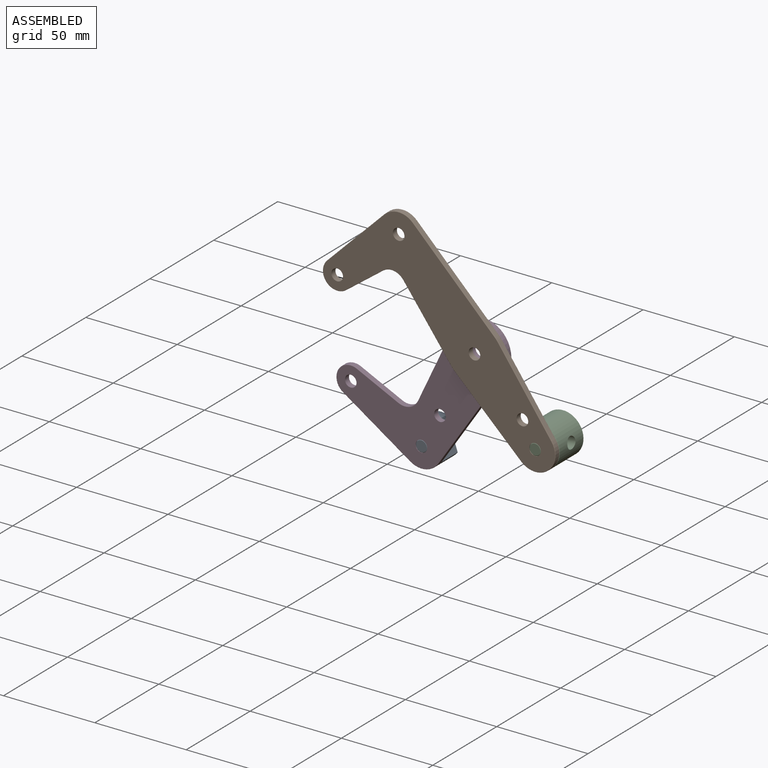
[diagram: assembled view]
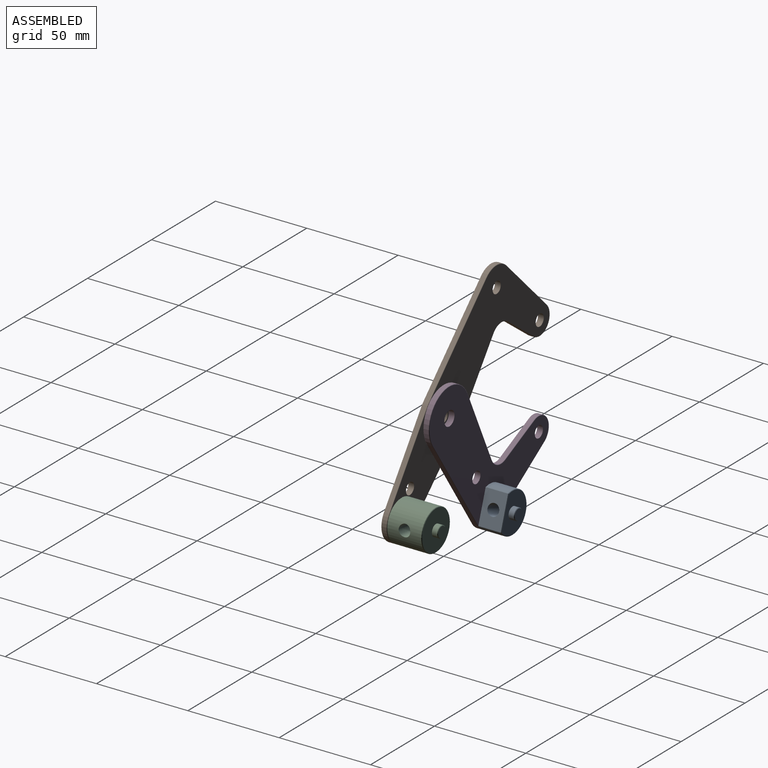
[diagram: assembled view, second angle]
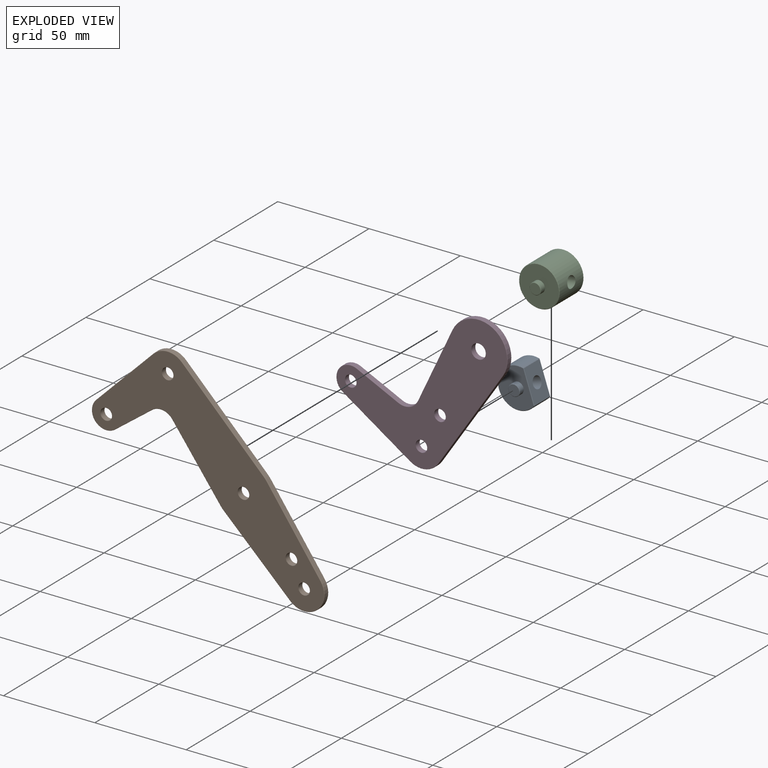
[diagram: exploded view]
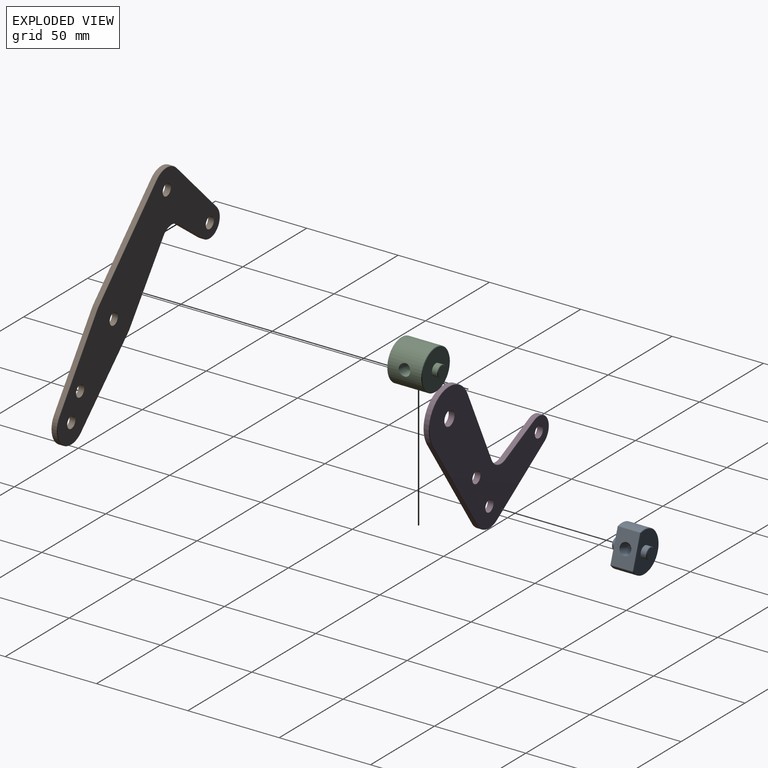
[diagram: exploded view, second angle]
ASSEMBLY  parts=4 mates=3
PART A: 22 faces, bbox 18.6x19.1x22.2 mm
  f0: plane 17.82x12.19mm, normal (0.99,0,0.13), area 187.4mm2, adj f5,f8,f10,f17,f20
  f1: cylinder r=11.11mm len=22.23mm, axis (0,-1,0), area 587.2mm2, adj f5,f7,f10,f16
  f2: cylinder r=3.17mm len=6.35mm, axis (0,-1,0), area 58.3mm2, adj f3,f11
  f3: plane 21.72x18.05mm, normal (0,-1,0), area 278.6mm2, adj f2,f7,f8
  f4: plane 5.84x5.84mm, normal (0,-1,0), area 26.8mm2, adj f11
  f5: plane 12.19x0.19mm, normal (0.82,0,0.58), area 2.9mm2, adj f0,f1,f6,f15
  f6: plane 0.25x0.25mm, normal (0.61,-0.66,0.43), area 0mm2, adj f5,f7,f8
  f7: cone r=10.86mm half-angle=45deg, axis (0,1,0), area 17.1mm2, adj f1,f3,f6,f9
  f8: plane 17.86x2.55mm, normal (0.7,-0.71,0.09), area 6.5mm2, adj f0,f3,f6,f9
  f9: plane 0.25x0.25mm, normal (0.7,-0.66,-0.26), area 0mm2, adj f7,f8,f10
  f10: plane 12.19x0.22mm, normal (0.94,0,-0.35), area 2.9mm2, adj f0,f1,f9,f18
  f11: cone r=2.92mm half-angle=45deg, axis (0,1,0), area 6.9mm2, adj f2,f4
  f12: cylinder r=3.17mm len=6.35mm, axis (0,1,0), area 58.3mm2, adj f13,f19
  f13: plane 21.72x18.05mm, normal (0,1,0), area 278.6mm2, adj f12,f16,f17
  f14: plane 5.84x5.84mm, normal (0,1,0), area 26.8mm2, adj f19
  f15: plane 0.25x0.25mm, normal (0.61,0.66,0.43), area 0mm2, adj f5,f16,f17
  f16: cone r=10.86mm half-angle=45deg, axis (0,-1,0), area 17.1mm2, adj f1,f13,f15,f18
  f17: plane 17.86x2.55mm, normal (0.7,0.71,0.09), area 6.5mm2, adj f0,f13,f15,f18
  f18: plane 0.25x0.25mm, normal (0.7,0.66,-0.26), area 0mm2, adj f10,f16,f17
  f19: cone r=2.92mm half-angle=45deg, axis (0,-1,0), area 6.9mm2, adj f12,f14
  f20: cylinder r=3.17mm len=13.41mm, axis (0.99,0,0.13), area 253.4mm2, adj f0,f21
  f21: plane 6.35x6.3mm, normal (0.99,0,0.13), area 31.7mm2, adj f20
PART B: 43 faces, bbox 129x3.2x110.6 mm
  f0: cylinder r=7.94mm len=13.56mm, axis (0,1,0), area 63.5mm2, adj f1,f14,f20,f32
  f1: plane 20.22x15.07mm, normal (0.6,0,-0.8), area 67.3mm2, adj f0,f2,f22,f34
  f2: cylinder r=7.94mm len=11.13mm, axis (0,1,0), area 33.3mm2, adj f1,f3,f24,f36
  f3: plane 35.53x26.29mm, normal (-0.8,0,-0.59), area 117.9mm2, adj f2,f4,f26,f38
  f4: cylinder r=15.88mm len=2.67mm, axis (0,1,0), area 7.2mm2, adj f3,f5,f28,f40
  f5: plane 36.49x35.02mm, normal (-0.69,0,-0.72), area 134.9mm2, adj f4,f6,f30,f42
  f6: cylinder r=11.11mm len=18.81mm, axis (0,1,0), area 87.5mm2, adj f5,f7,f29,f41
  f7: plane 41.22x29.31mm, normal (0.81,0,0.58), area 134.9mm2, adj f6,f8,f27,f39
  f8: cylinder r=15.88mm len=2.67mm, axis (0,1,0), area 7.2mm2, adj f7,f9,f25,f37
  f9: plane 44.86x44.69mm, normal (0.71,0,0.71), area 168.9mm2, adj f8,f10,f23,f35
  f10: cylinder r=11.11mm len=15.69mm, axis (0,1,0), area 46.4mm2, adj f9,f14,f21,f33
  f11: cylinder r=3.17mm len=6.35mm, axis (0,1,0), area 63.3mm2, adj f17,f18
  f12: cylinder r=3.17mm len=6.35mm, axis (0,1,0), area 63.3mm2, adj f17,f18
  f13: cylinder r=3.17mm len=6.35mm, axis (0,1,0), area 63.3mm2, adj f17,f18
  f14: plane 31.41x31.29mm, normal (-0.71,0,0.71), area 118.2mm2, adj f0,f10,f19,f31
  f15: cylinder r=3.17mm len=6.35mm, axis (0,1,0), area 63.3mm2, adj f17,f18
  f16: cylinder r=3.17mm len=6.35mm, axis (0,1,0), area 63.3mm2, adj f17,f18
  f17: plane 126.88x108.24mm, normal (0,-1,0), area 3972.2mm2, adj f11,f12,f13,f15,f16,f31,f32,f33
  f18: plane 126.88x108.24mm, normal (0,1,0), area 3972.2mm2, adj f11,f12,f13,f15,f16,f19,f20,f21
  f19: cylinder r=0.25mm len=31.59mm, axis (-0.71,0,-0.71), area 17.7mm2, adj f14,f18,f20,f21
  f20: torus R=7.68mm, axis (0,-1,0), area 9.4mm2, adj f0,f18,f19,f22
  f21: torus R=10.86mm, axis (0,-1,0), area 6.9mm2, adj f10,f18,f19,f23
  f22: cylinder r=0.25mm len=20.37mm, axis (0.8,0,0.6), area 10.1mm2, adj f1,f18,f20,f24
  f23: cylinder r=0.25mm len=45.03mm, axis (-0.71,0,0.71), area 25.3mm2, adj f9,f18,f21,f25
  f24: torus R=8.19mm, axis (0,-1,0), area 5mm2, adj f2,f18,f22,f26
  f25: torus R=15.62mm, axis (0,-1,0), area 1.1mm2, adj f8,f18,f23,f27
  f26: cylinder r=0.25mm len=35.68mm, axis (0.59,0,-0.8), area 17.6mm2, adj f3,f18,f24,f28
  f27: cylinder r=0.25mm len=41.36mm, axis (-0.58,0,0.81), area 20.2mm2, adj f7,f18,f25,f29
  f28: torus R=15.62mm, axis (0,-1,0), area 1.1mm2, adj f4,f18,f26,f30
  f29: torus R=10.86mm, axis (0,-1,0), area 13mm2, adj f6,f18,f27,f30
  f30: cylinder r=0.25mm len=36.67mm, axis (0.72,0,-0.69), area 20.2mm2, adj f5,f18,f28,f29
  f31: cylinder r=0.25mm len=31.59mm, axis (0.71,0,0.71), area 17.7mm2, adj f14,f17,f32,f33
  f32: torus R=7.68mm, axis (0,-1,0), area 9.4mm2, adj f0,f17,f31,f34
  f33: torus R=10.86mm, axis (0,-1,0), area 6.9mm2, adj f10,f17,f31,f35
  f34: cylinder r=0.25mm len=20.37mm, axis (-0.8,0,-0.6), area 10.1mm2, adj f1,f17,f32,f36
  f35: cylinder r=0.25mm len=45.03mm, axis (0.71,0,-0.71), area 25.3mm2, adj f9,f17,f33,f37
  f36: torus R=8.19mm, axis (0,-1,0), area 5mm2, adj f2,f17,f34,f38
  f37: torus R=15.62mm, axis (0,-1,0), area 1.1mm2, adj f8,f17,f35,f39
  f38: cylinder r=0.25mm len=35.68mm, axis (-0.59,0,0.8), area 17.6mm2, adj f3,f17,f36,f40
  f39: cylinder r=0.25mm len=41.36mm, axis (0.58,0,-0.81), area 20.2mm2, adj f7,f17,f37,f41
  f40: torus R=15.62mm, axis (0,-1,0), area 1.1mm2, adj f4,f17,f38,f42
  f41: torus R=10.86mm, axis (0,-1,0), area 13mm2, adj f6,f17,f39,f42
  f42: cylinder r=0.25mm len=36.67mm, axis (-0.72,0,0.69), area 20.2mm2, adj f5,f17,f40,f41
PART C: 12 faces, bbox 22.9x25.4x22.2 mm
  f0: cylinder r=11.11mm len=22.23mm, axis (0,-1,0), area 1230.7mm2, adj f4,f9,f11
  f1: plane 21.72x21.72mm, normal (0,-1,0), area 338.7mm2, adj f2,f4
  f2: cylinder r=3.17mm len=6.35mm, axis (0,1,0), area 58.3mm2, adj f1,f5
  f3: plane 5.84x5.84mm, normal (0,-1,0), area 26.8mm2, adj f5
  f4: cone r=11.11mm half-angle=45deg, axis (0,1,0), area 24.8mm2, adj f0,f1
  f5: cone r=2.92mm half-angle=45deg, axis (0,1,0), area 6.9mm2, adj f2,f3
  f6: plane 21.72x21.72mm, normal (0,1,0), area 338.7mm2, adj f7,f9
  f7: cylinder r=3.17mm len=6.35mm, axis (0,-1,0), area 58.3mm2, adj f6,f10
  f8: plane 5.84x5.84mm, normal (0,1,0), area 26.8mm2, adj f10
  f9: cone r=11.11mm half-angle=45deg, axis (0,-1,0), area 24.8mm2, adj f0,f6
  f10: cone r=2.92mm half-angle=45deg, axis (0,-1,0), area 6.9mm2, adj f7,f8
  f11: cylinder r=3.17mm len=22.85mm, axis (0.99,0,0.13), area 434.2mm2, adj f0
PART D: 30 faces, bbox 100.9x3.2x77.3 mm
  f0: plane 44.86x44.69mm, normal (0.71,0,-0.71), area 168.9mm2, adj f1,f10,f18,f26
  f1: cylinder r=15.88mm len=28.64mm, axis (0,-1,0), area 139.4mm2, adj f0,f2,f16,f24
  f2: plane 35.53x26.29mm, normal (-0.8,0,0.59), area 117.9mm2, adj f1,f3,f14,f22
  f3: cylinder r=7.94mm len=11.13mm, axis (0,-1,0), area 33.3mm2, adj f2,f4,f15,f23
  f4: plane 20.22x15.07mm, normal (0.6,0,0.8), area 67.3mm2, adj f3,f5,f17,f25
  f5: cylinder r=7.94mm len=13.56mm, axis (0,-1,0), area 63.5mm2, adj f4,f6,f19,f27
  f6: plane 31.41x31.29mm, normal (-0.71,0,-0.71), area 118.2mm2, adj f5,f10,f21,f29
  f7: cylinder r=3.17mm len=6.35mm, axis (0,-1,0), area 63.3mm2, adj f12,f13
  f8: cylinder r=3.97mm len=7.94mm, axis (0,-1,0), area 79.2mm2, adj f12,f13
  f9: cylinder r=3.17mm len=6.35mm, axis (0,-1,0), area 63.3mm2, adj f12,f13
  f10: cylinder r=11.11mm len=15.69mm, axis (0,-1,0), area 46.4mm2, adj f0,f6,f20,f28
  f11: cylinder r=3.17mm len=6.35mm, axis (0,-1,0), area 63.3mm2, adj f12,f13
  f12: plane 98.45x74.55mm, normal (0,1,0), area 2833mm2, adj f7,f8,f9,f11,f22,f23,f24,f25
  f13: plane 98.45x74.55mm, normal (0,-1,0), area 2833mm2, adj f7,f8,f9,f11,f14,f15,f16,f17
  f14: cylinder r=0.25mm len=35.68mm, axis (-0.59,0,-0.8), area 17.6mm2, adj f2,f13,f15,f16
  f15: torus R=8.19mm, axis (0,-1,0), area 5mm2, adj f3,f13,f14,f17
  f16: torus R=15.62mm, axis (0,-1,0), area 20.7mm2, adj f1,f13,f14,f18
  f17: cylinder r=0.25mm len=20.37mm, axis (-0.8,0,0.6), area 10.1mm2, adj f4,f13,f15,f19
  f18: cylinder r=0.25mm len=45.03mm, axis (0.71,0,0.71), area 25.3mm2, adj f0,f13,f16,f20
  f19: torus R=7.68mm, axis (0,-1,0), area 9.4mm2, adj f5,f13,f17,f21
  f20: torus R=10.86mm, axis (0,-1,0), area 6.9mm2, adj f10,f13,f18,f21
  f21: cylinder r=0.25mm len=31.59mm, axis (0.71,0,-0.71), area 17.7mm2, adj f6,f13,f19,f20
  f22: cylinder r=0.25mm len=35.68mm, axis (0.59,0,0.8), area 17.6mm2, adj f2,f12,f23,f24
  f23: torus R=8.19mm, axis (0,-1,0), area 5mm2, adj f3,f12,f22,f25
  f24: torus R=15.62mm, axis (0,-1,0), area 20.7mm2, adj f1,f12,f22,f26
  f25: cylinder r=0.25mm len=20.37mm, axis (0.8,0,-0.6), area 10.1mm2, adj f4,f12,f23,f27
  f26: cylinder r=0.25mm len=45.03mm, axis (-0.71,0,-0.71), area 25.3mm2, adj f0,f12,f24,f28
  f27: torus R=7.68mm, axis (0,-1,0), area 9.4mm2, adj f5,f12,f25,f29
  f28: torus R=10.86mm, axis (0,-1,0), area 6.9mm2, adj f10,f12,f26,f29
  f29: cylinder r=0.25mm len=31.59mm, axis (-0.71,0,0.71), area 17.7mm2, adj f6,f12,f27,f28
PLACE A rot(axis=(0,-1,0),11.3deg) t=(0,0,0)mm
PLACE B at identity fixed
PLACE C at identity
PLACE D rot(axis=(0,-1,0),11.3deg) t=(0,0,0)mm
MATE revolute D.f1 <-> B.f4  axis (0,-1,0) through (0,0,0)mm
MATE revolute A.f1 <-> D.f7  axis (0,-1,0) through (-31.26,3.17,-55.27)mm
MATE revolute C.f0 <-> B.f6  axis (0,1,0) through (33.19,0,-38.45)mm
